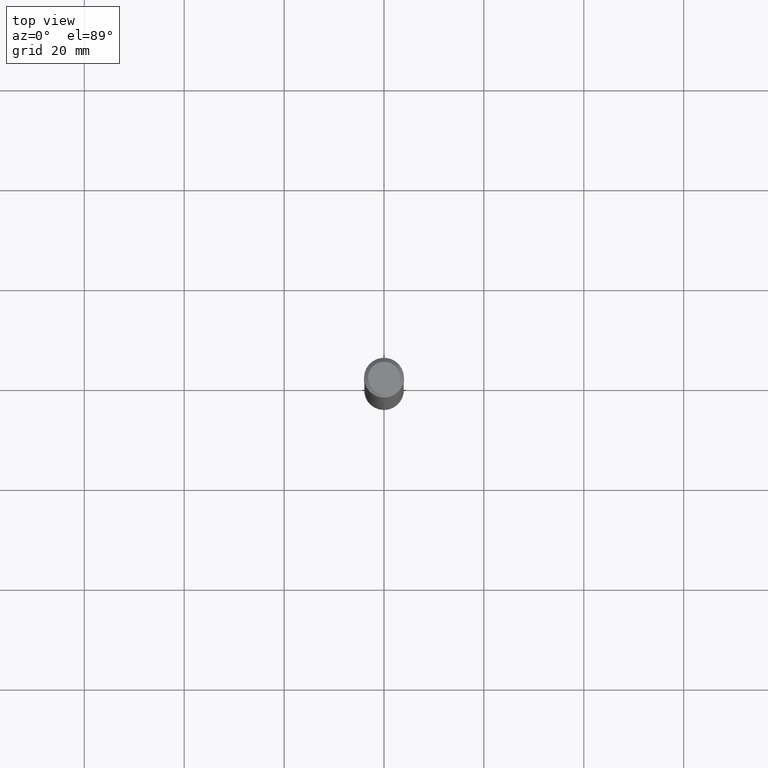
[diagram: clean part render]
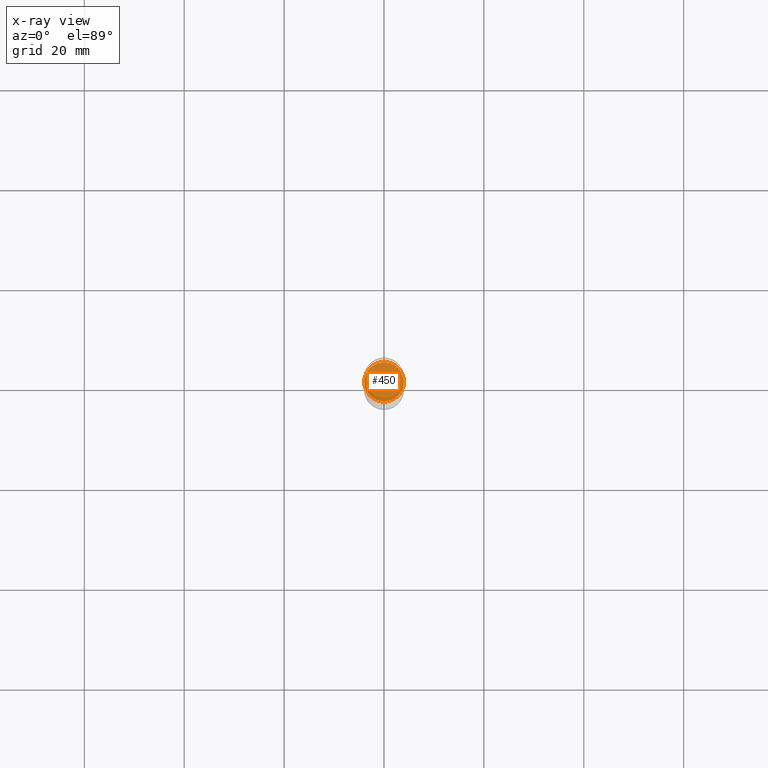
[diagram: x-ray — body ghosted, one internal face saturated and labeled with its STEP entity id]
A machine part, top view, then the same camera in x-ray: the body is ghosted and one INTERNAL B-rep face — a face not visible from any outside direction — is saturated and labeled: STEP entity #450.
In plain terms, the highlighted planar face has unit normal (-0, 0, 1).
Its self-contained STEP definition (entity closure, byte-faithful):
#19 = DIRECTION ( 'NONE',  ( 1.000000000000000000, -6.982962677686265922E-15, 0.000000000000000000 ) ) ;
#25 = CARTESIAN_POINT ( 'NONE',  ( 4.804857110392556897E-29, -6.860062534559013370E-15, -1.964800000000000324 ) ) ;
#32 = DIRECTION ( 'NONE',  ( 1.000000000000000000, -6.982962677686265922E-15, 0.000000000000000000 ) ) ;
#39 = AXIS2_PLACEMENT_3D ( 'NONE', #25, #440, #19 ) ;
#79 = CARTESIAN_POINT ( 'NONE',  ( 0.1557499999999999996, -7.947658971608648747E-15, -1.964800000000000324 ) ) ;
#85 = CARTESIAN_POINT ( 'NONE',  ( -0.1557499999999999996, -5.750742996438546527E-15, -1.964800000000000324 ) ) ;
#107 = CARTESIAN_POINT ( 'NONE',  ( 4.804857110392556897E-29, -6.860062534559013370E-15, -1.964800000000000324 ) ) ;
#160 = AXIS2_PLACEMENT_3D ( 'NONE', #365, #281, #434 ) ;
#180 = CIRCLE ( 'NONE', #39, 0.1557499999999999996 ) ;
#206 = PLANE ( 'NONE',  #160 ) ;
#217 = DIRECTION ( 'NONE',  ( -2.445468806185136597E-29, 3.491481338843145583E-15, 1.000000000000000000 ) ) ;
#231 = ORIENTED_EDGE ( 'NONE', *, *, #391, .F. ) ;
#232 = VERTEX_POINT ( 'NONE', #79 ) ;
#275 = VERTEX_POINT ( 'NONE', #85 ) ;
#278 = EDGE_CURVE ( 'NONE', #275, #232, #180, .T. ) ;
#281 = DIRECTION ( 'NONE',  ( -2.438088387897960049E-29, 3.491481338843145188E-15, 1.000000000000000000 ) ) ;
#316 = FACE_OUTER_BOUND ( 'NONE', #378, .T. ) ;
#365 = CARTESIAN_POINT ( 'NONE',  ( 4.804857110392556897E-29, -6.860062534559013370E-15, -1.964800000000000324 ) ) ;
#378 = EDGE_LOOP ( 'NONE', ( #231, #465 ) ) ;
#391 = EDGE_CURVE ( 'NONE', #232, #275, #430, .T. ) ;
#430 = CIRCLE ( 'NONE', #479, 0.1557499999999999996 ) ;
#434 = DIRECTION ( 'NONE',  ( 1.000000000000000000, -6.982962677686265922E-15, 4.876176775795935793E-29 ) ) ;
#440 = DIRECTION ( 'NONE',  ( -2.445468806185136597E-29, 3.491481338843145583E-15, 1.000000000000000000 ) ) ;
#450 = ADVANCED_FACE ( 'NONE', ( #316 ), #206, .F. ) ;
#465 = ORIENTED_EDGE ( 'NONE', *, *, #278, .F. ) ;
#479 = AXIS2_PLACEMENT_3D ( 'NONE', #107, #217, #32 ) ;